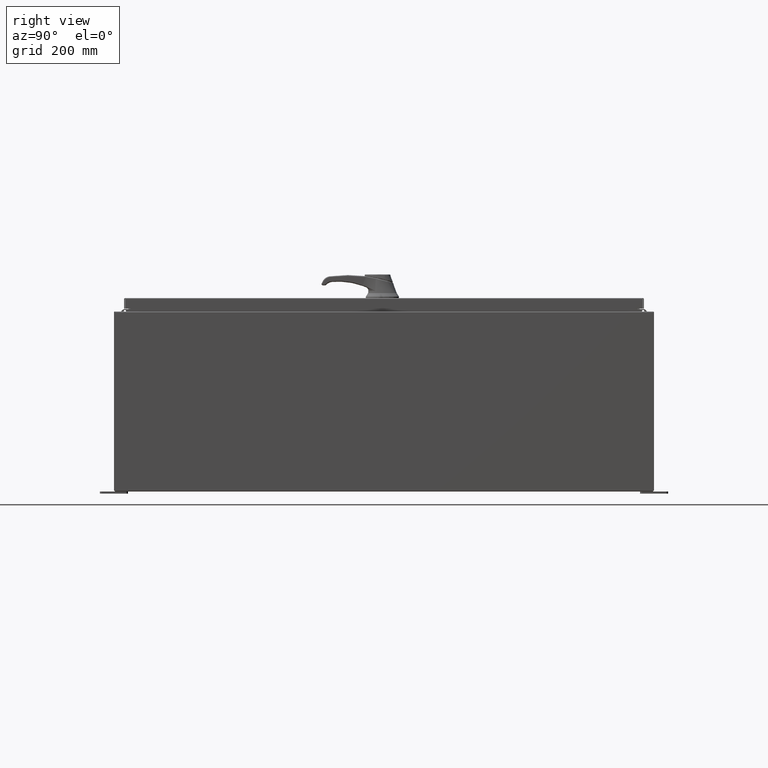
[diagram: clean part render]
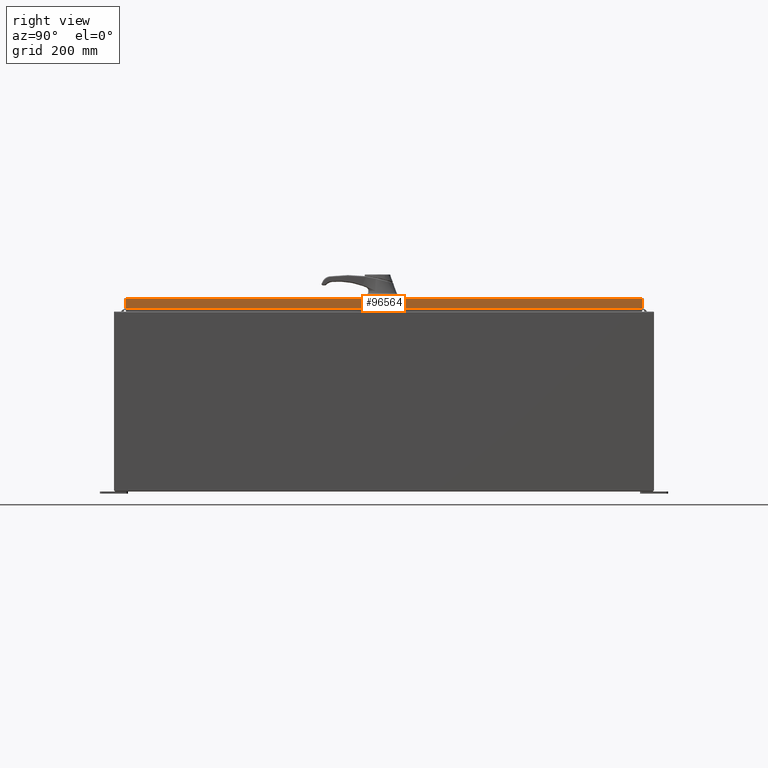
[diagram: same view with one face highlighted and labeled with its STEP entity id]
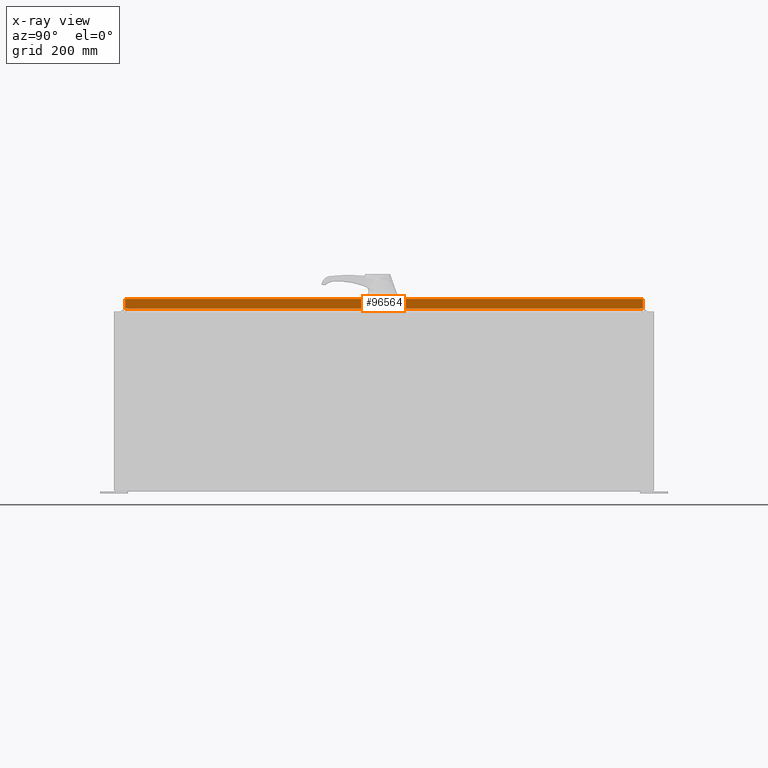
[diagram: x-ray of the same camera — body ghosted, the highlighted face saturated]
A machine part, right view. The second image highlights one B-rep face of the part: STEP entity #96564.
The next image is the same camera in x-ray: the body ghosted, the highlighted face saturated — about 0% of this face is hidden behind the body in this view.
In plain terms, the highlighted planar face has unit normal (1, 0, 0).
Its self-contained STEP definition (entity closure, byte-faithful):
#1070 = VECTOR ( 'NONE', #1848, 39.37007874015748100 ) ;
#1848 = DIRECTION ( 'NONE',  ( 0.0000000000000000000, -1.000000000000000000, 0.0000000000000000000 ) ) ;
#15151 = DIRECTION ( 'NONE',  ( 1.000000000000000000, 0.0000000000000000000, 2.532419924601866100E-015 ) ) ;
#15538 = CARTESIAN_POINT ( 'NONE',  ( 17.07799999999999900, -23.00515786437626900, -0.08770000000000008300 ) ) ;
#16069 = FACE_OUTER_BOUND ( 'NONE', #45905, .T. ) ;
#16435 = VERTEX_POINT ( 'NONE', #15538 ) ;
#17801 = VECTOR ( 'NONE', #57200, 39.37007874015748100 ) ;
#18812 = ORIENTED_EDGE ( 'NONE', *, *, #79446, .F. ) ;
#18935 = CARTESIAN_POINT ( 'NONE',  ( 17.07799999999999900, 23.00515786437627600, 2.041536398895824600E-013 ) ) ;
#22599 = EDGE_CURVE ( 'NONE', #96669, #16435, #126889, .T. ) ;
#28071 = EDGE_CURVE ( 'NONE', #125423, #96669, #62080, .T. ) ;
#45905 = EDGE_LOOP ( 'NONE', ( #100365, #18812, #48734, #62272 ) ) ;
#46736 = VECTOR ( 'NONE', #115723, 39.37007874015748100 ) ;
#47840 = CARTESIAN_POINT ( 'NONE',  ( 17.07799999999999900, 23.00515786437627200, -0.08770000000000008300 ) ) ;
#48734 = ORIENTED_EDGE ( 'NONE', *, *, #28071, .T. ) ;
#55500 = LINE ( 'NONE', #63221, #1070 ) ;
#57200 = DIRECTION ( 'NONE',  ( 0.0000000000000000000, -1.000000000000000000, 0.0000000000000000000 ) ) ;
#62080 = LINE ( 'NONE', #18935, #116609 ) ;
#62272 = ORIENTED_EDGE ( 'NONE', *, *, #22599, .T. ) ;
#63221 = CARTESIAN_POINT ( 'NONE',  ( 17.07800000000000300, -23.09400000000000100, -0.9376999999999997600 ) ) ;
#70511 = DIRECTION ( 'NONE',  ( -2.532419924601866100E-015, -6.982962677686265900E-015, 1.000000000000000000 ) ) ;
#76564 = CARTESIAN_POINT ( 'NONE',  ( 17.07799999999999900, 0.0000000000000000000, 4.350948112836224800E-014 ) ) ;
#79446 = EDGE_CURVE ( 'NONE', #125423, #99688, #55500, .T. ) ;
#86423 = PLANE ( 'NONE',  #114828 ) ;
#86855 = DIRECTION ( 'NONE',  ( 2.532419924601866100E-015, 0.0000000000000000000, -1.000000000000000000 ) ) ;
#96564 = ADVANCED_FACE ( 'NONE', ( #16069 ), #86423, .T. ) ;
#96669 = VERTEX_POINT ( 'NONE', #47840 ) ;
#97892 = CARTESIAN_POINT ( 'NONE',  ( 17.07800000000000300, 23.00515786437628000, -0.9376999999999997600 ) ) ;
#99688 = VERTEX_POINT ( 'NONE', #121172 ) ;
#100365 = ORIENTED_EDGE ( 'NONE', *, *, #125740, .F. ) ;
#105858 = CARTESIAN_POINT ( 'NONE',  ( 17.07799999999999900, -23.00515786437626900, -0.07469999999999980800 ) ) ;
#114828 = AXIS2_PLACEMENT_3D ( 'NONE', #76564, #15151, #86855 ) ;
#115723 = DIRECTION ( 'NONE',  ( -2.532419924601866100E-015, -6.982962677686265900E-015, 1.000000000000000000 ) ) ;
#116609 = VECTOR ( 'NONE', #70511, 39.37007874015748100 ) ;
#121172 = CARTESIAN_POINT ( 'NONE',  ( 17.07800000000000300, -23.00515786437626200, -0.9376999999999997600 ) ) ;
#125333 = LINE ( 'NONE', #105858, #46736 ) ;
#125423 = VERTEX_POINT ( 'NONE', #97892 ) ;
#125740 = EDGE_CURVE ( 'NONE', #99688, #16435, #125333, .T. ) ;
#126889 = LINE ( 'NONE', #128978, #17801 ) ;
#128978 = CARTESIAN_POINT ( 'NONE',  ( 17.07799999999999900, 0.0000000000000000000, -0.08770000000000008300 ) ) ;